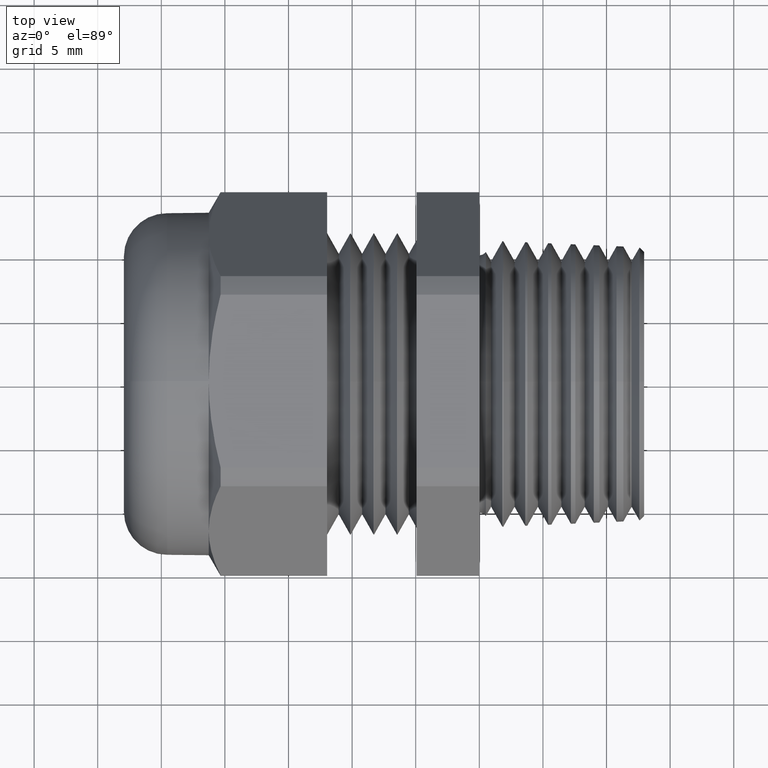
[diagram: clean part render]
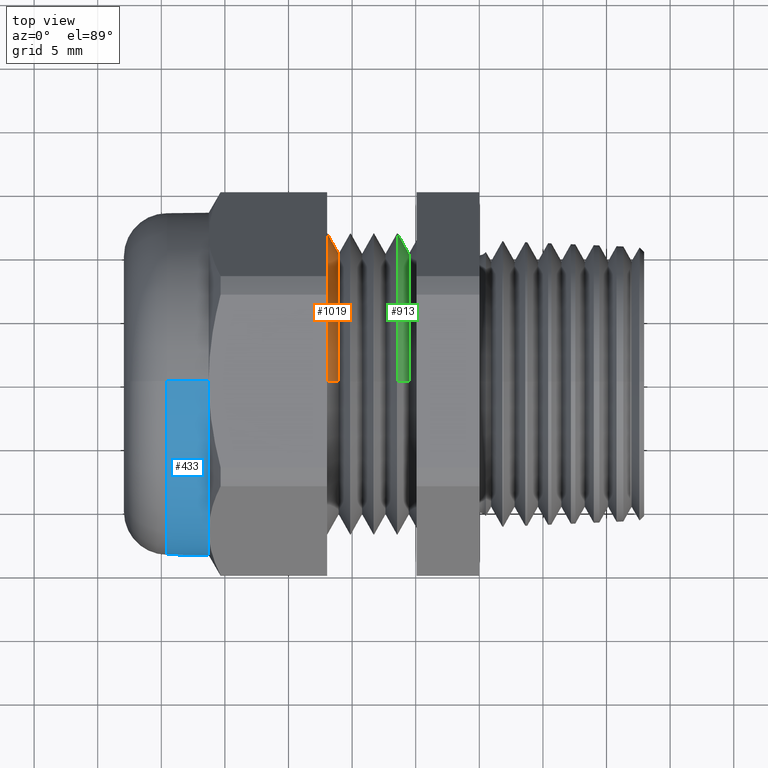
[diagram: same view with three faces highlighted in distinct colors, each labeled with its STEP entity id]
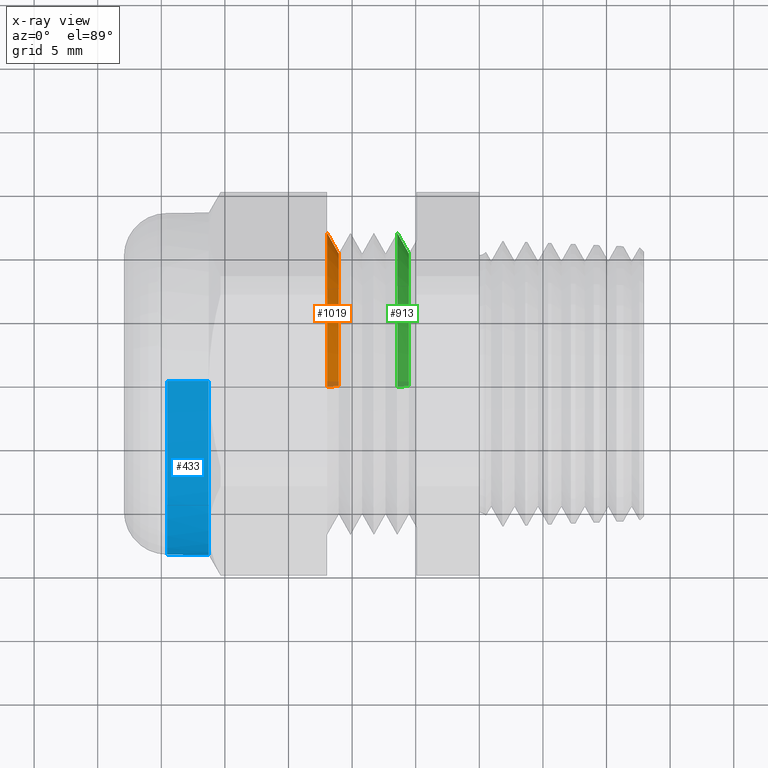
[diagram: x-ray of the same camera — body ghosted, the three highlighted faces saturated]
A machine part, top view with three faces highlighted in distinct colors.
The next image is the same camera in x-ray (body ghosted, the three faces saturated) — at least one of them is partly hidden behind the body in this view.
Their STEP definitions:

[orange] entity #1019 — the highlighted conical surface has half-angle 60 deg.
#961 = EDGE_CURVE ( 'NONE', #1020, #1031, #2719, .T. ) ;
#966 = ORIENTED_EDGE ( 'NONE', *, *, #967, .T. ) ;
#967 = EDGE_CURVE ( 'NONE', #1020, #1012, #2720, .T. ) ;
#968 = ORIENTED_EDGE ( 'NONE', *, *, #1030, .F. ) ;
#975 = ORIENTED_EDGE ( 'NONE', *, *, #976, .T. ) ;
#976 = EDGE_CURVE ( 'NONE', #1012, #979, #2754, .T. ) ;
#979 = VERTEX_POINT ( 'NONE', #2805 ) ;
#1009 = ORIENTED_EDGE ( 'NONE', *, *, #961, .F. ) ;
#1012 = VERTEX_POINT ( 'NONE', #2868 ) ;
#1019 = ADVANCED_FACE ( 'NONE', ( #2852 ), #2851, .T. ) ;
#1020 = VERTEX_POINT ( 'NONE', #2846 ) ;
#1030 = EDGE_CURVE ( 'NONE', #1031, #979, #2922, .T. ) ;
#1031 = VERTEX_POINT ( 'NONE', #2918 ) ;
#1038 = EDGE_LOOP ( 'NONE', ( #1009, #966, #975, #968 ) ) ;
#2717 = CARTESIAN_POINT ( 'NONE',  ( -0.4351190642708378000, 0.0000000000000000000, 0.0000000000000000000 ) ) ;
#2718 = AXIS2_PLACEMENT_3D ( 'NONE', #2717, #2777, #2776 ) ;
#2719 = CIRCLE ( 'NONE', #2718, 0.4045410714285714900 ) ;
#2720 = LINE ( 'NONE', #2775, #2774 ) ;
#2750 = DIRECTION ( 'NONE',  ( 0.0000000000000000000, 0.0000000000000000000, -1.000000000000000000 ) ) ;
#2751 = DIRECTION ( 'NONE',  ( 1.000000000000000000, 0.0000000000000000000, 0.0000000000000000000 ) ) ;
#2752 = CARTESIAN_POINT ( 'NONE',  ( -0.4708333333333333300, 0.0000000000000000000, 0.0000000000000000000 ) ) ;
#2753 = AXIS2_PLACEMENT_3D ( 'NONE', #2752, #2751, #2750 ) ;
#2754 = CIRCLE ( 'NONE', #2753, 0.4664000000000000400 ) ;
#2773 = DIRECTION ( 'NONE',  ( -0.4999999999999941200, 1.060575238724911100E-016, -0.8660254037844420400 ) ) ;
#2774 = VECTOR ( 'NONE', #2773, 39.37007874015748100 ) ;
#2775 = CARTESIAN_POINT ( 'NONE',  ( -0.4708333333333333300, 5.711752671223256000E-017, -0.4664000000000000400 ) ) ;
#2776 = DIRECTION ( 'NONE',  ( 0.0000000000000000000, 0.0000000000000000000, -1.000000000000000000 ) ) ;
#2777 = DIRECTION ( 'NONE',  ( 1.000000000000000000, 0.0000000000000000000, 0.0000000000000000000 ) ) ;
#2805 = CARTESIAN_POINT ( 'NONE',  ( -0.4708333333333333300, 0.0000000000000000000, 0.4664000000000000400 ) ) ;
#2846 = CARTESIAN_POINT ( 'NONE',  ( -0.4351190642708378000, 0.0000000000000000000, -0.4045410714285714900 ) ) ;
#2847 = DIRECTION ( 'NONE',  ( 0.0000000000000000000, 0.0000000000000000000, 1.000000000000000000 ) ) ;
#2848 = DIRECTION ( 'NONE',  ( -1.000000000000000000, 0.0000000000000000000, 0.0000000000000000000 ) ) ;
#2849 = CARTESIAN_POINT ( 'NONE',  ( -0.4708333333333333300, 0.0000000000000000000, 0.0000000000000000000 ) ) ;
#2850 = AXIS2_PLACEMENT_3D ( 'NONE', #2849, #2848, #2847 ) ;
#2851 = CONICAL_SURFACE ( 'NONE', #2850, 0.4664000000000000400, 1.047197551196604500 ) ;
#2852 = FACE_OUTER_BOUND ( 'NONE', #1038, .T. ) ;
#2868 = CARTESIAN_POINT ( 'NONE',  ( -0.4708333333333333300, 5.711752671223256000E-017, -0.4664000000000000400 ) ) ;
#2918 = CARTESIAN_POINT ( 'NONE',  ( -0.4351190642708378000, 5.332975976854832300E-017, 0.4045410714285714900 ) ) ;
#2919 = DIRECTION ( 'NONE',  ( -0.4999999999999941200, 0.0000000000000000000, 0.8660254037844420400 ) ) ;
#2920 = VECTOR ( 'NONE', #2919, 39.37007874015748100 ) ;
#2921 = CARTESIAN_POINT ( 'NONE',  ( -0.4708333333333333300, 0.0000000000000000000, 0.4664000000000000400 ) ) ;
#2922 = LINE ( 'NONE', #2921, #2920 ) ;

[blue] entity #433 — the highlighted cylindrical surface (partial cylindrical patch) has radius 13.462 mm, axis along (-1, 0, 0).
#38 = VERTEX_POINT ( 'NONE', #1158 ) ;
#240 = VERTEX_POINT ( 'NONE', #1598 ) ;
#414 = ORIENTED_EDGE ( 'NONE', *, *, #415, .T. ) ;
#415 = EDGE_CURVE ( 'NONE', #240, #38, #1839, .T. ) ;
#416 = ORIENTED_EDGE ( 'NONE', *, *, #417, .T. ) ;
#417 = EDGE_CURVE ( 'NONE', #38, #1059, #1830, .T. ) ;
#418 = ORIENTED_EDGE ( 'NONE', *, *, #1075, .T. ) ;
#419 = ORIENTED_EDGE ( 'NONE', *, *, #420, .T. ) ;
#420 = EDGE_CURVE ( 'NONE', #1034, #981, #1823, .T. ) ;
#433 = ADVANCED_FACE ( 'NONE', ( #1876 ), #1875, .T. ) ;
#434 = EDGE_LOOP ( 'NONE', ( #435, #436, #414, #416, #418, #419 ) ) ;
#435 = ORIENTED_EDGE ( 'NONE', *, *, #1024, .F. ) ;
#436 = ORIENTED_EDGE ( 'NONE', *, *, #437, .T. ) ;
#437 = EDGE_CURVE ( 'NONE', #1022, #240, #1874, .T. ) ;
#981 = VERTEX_POINT ( 'NONE', #2799 ) ;
#1022 = VERTEX_POINT ( 'NONE', #2844 ) ;
#1024 = EDGE_CURVE ( 'NONE', #1022, #981, #1571, .T. ) ;
#1034 = VERTEX_POINT ( 'NONE', #2910 ) ;
#1059 = VERTEX_POINT ( 'NONE', #3000 ) ;
#1075 = EDGE_CURVE ( 'NONE', #1059, #1034, #2979, .T. ) ;
#1158 = CARTESIAN_POINT ( 'NONE',  ( -0.8375000000000000200, -0.4589934640057523600, 0.2650000000000000100 ) ) ;
#1571 = LINE ( 'NONE', #1825, #2093 ) ;
#1574 = DIRECTION ( 'NONE',  ( 0.0000000000000000000, 0.0000000000000000000, -1.000000000000000000 ) ) ;
#1575 = AXIS2_PLACEMENT_3D ( 'NONE', #1578, #1577, #1574 ) ;
#1577 = DIRECTION ( 'NONE',  ( 1.000000000000000000, 0.0000000000000000000, 0.0000000000000000000 ) ) ;
#1578 = CARTESIAN_POINT ( 'NONE',  ( -0.9663999999999999300, 0.0000000000000000000, 0.0000000000000000000 ) ) ;
#1598 = CARTESIAN_POINT ( 'NONE',  ( -0.8375000000000000200, -0.4589934640057521900, -0.2650000000000003500 ) ) ;
#1823 = CIRCLE ( 'NONE', #1575, 0.5299999999999999200 ) ;
#1825 = CARTESIAN_POINT ( 'NONE',  ( -0.7238591030180623300, 6.490628035480971200E-017, -0.5299999999999999200 ) ) ;
#1826 = DIRECTION ( 'NONE',  ( 0.0000000000000000000, 0.0000000000000000000, 1.000000000000000000 ) ) ;
#1827 = DIRECTION ( 'NONE',  ( -1.000000000000000000, 0.0000000000000000000, 0.0000000000000000000 ) ) ;
#1828 = CARTESIAN_POINT ( 'NONE',  ( -0.8375000000000000200, 0.0000000000000000000, 0.0000000000000000000 ) ) ;
#1829 = AXIS2_PLACEMENT_3D ( 'NONE', #1828, #1827, #1826 ) ;
#1830 = CIRCLE ( 'NONE', #1829, 0.5299999999999999200 ) ;
#1831 = DIRECTION ( 'NONE',  ( 0.0000000000000000000, 0.0000000000000000000, 1.000000000000000000 ) ) ;
#1832 = DIRECTION ( 'NONE',  ( -1.000000000000000000, 0.0000000000000000000, 0.0000000000000000000 ) ) ;
#1833 = CARTESIAN_POINT ( 'NONE',  ( -0.8375000000000000200, 0.0000000000000000000, 0.0000000000000000000 ) ) ;
#1834 = AXIS2_PLACEMENT_3D ( 'NONE', #1833, #1832, #1831 ) ;
#1839 = CIRCLE ( 'NONE', #1834, 0.5299999999999999200 ) ;
#1866 = DIRECTION ( 'NONE',  ( 0.0000000000000000000, 0.0000000000000000000, 1.000000000000000000 ) ) ;
#1867 = DIRECTION ( 'NONE',  ( -1.000000000000000000, 0.0000000000000000000, 0.0000000000000000000 ) ) ;
#1868 = CARTESIAN_POINT ( 'NONE',  ( -0.8375000000000000200, 0.0000000000000000000, 0.0000000000000000000 ) ) ;
#1869 = AXIS2_PLACEMENT_3D ( 'NONE', #1868, #1867, #1866 ) ;
#1870 = DIRECTION ( 'NONE',  ( 0.0000000000000000000, 0.0000000000000000000, 1.000000000000000000 ) ) ;
#1871 = DIRECTION ( 'NONE',  ( -1.000000000000000000, 0.0000000000000000000, 0.0000000000000000000 ) ) ;
#1872 = CARTESIAN_POINT ( 'NONE',  ( -0.7238591030180623300, 0.0000000000000000000, 0.0000000000000000000 ) ) ;
#1873 = AXIS2_PLACEMENT_3D ( 'NONE', #1872, #1871, #1870 ) ;
#1874 = CIRCLE ( 'NONE', #1869, 0.5299999999999999200 ) ;
#1875 = CYLINDRICAL_SURFACE ( 'NONE', #1873, 0.5299999999999999200 ) ;
#1876 = FACE_OUTER_BOUND ( 'NONE', #434, .T. ) ;
#2088 = DIRECTION ( 'NONE',  ( -1.000000000000000000, 0.0000000000000000000, 0.0000000000000000000 ) ) ;
#2093 = VECTOR ( 'NONE', #2088, 39.37007874015748100 ) ;
#2799 = CARTESIAN_POINT ( 'NONE',  ( -0.9663999999999999300, 6.490628035480971200E-017, -0.5299999999999999200 ) ) ;
#2844 = CARTESIAN_POINT ( 'NONE',  ( -0.8375000000000000200, 0.0000000000000000000, -0.5299999999999999200 ) ) ;
#2910 = CARTESIAN_POINT ( 'NONE',  ( -0.9663999999999999300, 0.0000000000000000000, 0.5299999999999999200 ) ) ;
#2971 = DIRECTION ( 'NONE',  ( -1.000000000000000000, 0.0000000000000000000, 0.0000000000000000000 ) ) ;
#2972 = VECTOR ( 'NONE', #2971, 39.37007874015748100 ) ;
#2973 = CARTESIAN_POINT ( 'NONE',  ( -0.7238591030180623300, 0.0000000000000000000, 0.5299999999999999200 ) ) ;
#2979 = LINE ( 'NONE', #2973, #2972 ) ;
#3000 = CARTESIAN_POINT ( 'NONE',  ( -0.8375000000000000200, 0.0000000000000000000, 0.5299999999999999200 ) ) ;

[green] entity #913 — the highlighted conical surface has half-angle 60 deg.
#811 = ORIENTED_EDGE ( 'NONE', *, *, #878, .F. ) ;
#878 = EDGE_CURVE ( 'NONE', #898, #904, #2567, .T. ) ;
#898 = VERTEX_POINT ( 'NONE', #2651 ) ;
#899 = ORIENTED_EDGE ( 'NONE', *, *, #900, .T. ) ;
#900 = EDGE_CURVE ( 'NONE', #917, #901, #2650, .T. ) ;
#901 = VERTEX_POINT ( 'NONE', #2646 ) ;
#902 = ORIENTED_EDGE ( 'NONE', *, *, #903, .T. ) ;
#903 = EDGE_CURVE ( 'NONE', #901, #904, #2645, .T. ) ;
#904 = VERTEX_POINT ( 'NONE', #2640 ) ;
#913 = ADVANCED_FACE ( 'NONE', ( #2628 ), #2627, .T. ) ;
#914 = EDGE_LOOP ( 'NONE', ( #915, #899, #902, #811 ) ) ;
#915 = ORIENTED_EDGE ( 'NONE', *, *, #916, .F. ) ;
#916 = EDGE_CURVE ( 'NONE', #917, #898, #2685, .T. ) ;
#917 = VERTEX_POINT ( 'NONE', #2680 ) ;
#2560 = DIRECTION ( 'NONE',  ( -0.4999999999999941200, 0.0000000000000000000, 0.8660254037844420400 ) ) ;
#2561 = VECTOR ( 'NONE', #2560, 39.37007874015748100 ) ;
#2562 = CARTESIAN_POINT ( 'NONE',  ( -0.2535476190476190800, 0.0000000000000000000, 0.4664000000000000400 ) ) ;
#2567 = LINE ( 'NONE', #2562, #2561 ) ;
#2623 = DIRECTION ( 'NONE',  ( 0.0000000000000000000, 0.0000000000000000000, 1.000000000000000000 ) ) ;
#2624 = DIRECTION ( 'NONE',  ( -1.000000000000000000, 0.0000000000000000000, 0.0000000000000000000 ) ) ;
#2625 = CARTESIAN_POINT ( 'NONE',  ( -0.2535476190476190800, 0.0000000000000000000, 0.0000000000000000000 ) ) ;
#2626 = AXIS2_PLACEMENT_3D ( 'NONE', #2625, #2624, #2623 ) ;
#2627 = CONICAL_SURFACE ( 'NONE', #2626, 0.4664000000000000400, 1.047197551196604500 ) ;
#2628 = FACE_OUTER_BOUND ( 'NONE', #914, .T. ) ;
#2640 = CARTESIAN_POINT ( 'NONE',  ( -0.2535476190476190800, 0.0000000000000000000, 0.4664000000000000400 ) ) ;
#2641 = DIRECTION ( 'NONE',  ( 0.0000000000000000000, 0.0000000000000000000, -1.000000000000000000 ) ) ;
#2642 = DIRECTION ( 'NONE',  ( 1.000000000000000000, 0.0000000000000000000, 0.0000000000000000000 ) ) ;
#2643 = CARTESIAN_POINT ( 'NONE',  ( -0.2535476190476190800, 0.0000000000000000000, 0.0000000000000000000 ) ) ;
#2644 = AXIS2_PLACEMENT_3D ( 'NONE', #2643, #2642, #2641 ) ;
#2645 = CIRCLE ( 'NONE', #2644, 0.4664000000000000400 ) ;
#2646 = CARTESIAN_POINT ( 'NONE',  ( -0.2535476190476190800, 5.711752671223256000E-017, -0.4664000000000000400 ) ) ;
#2647 = DIRECTION ( 'NONE',  ( -0.4999999999999941200, 1.060575238724911100E-016, -0.8660254037844420400 ) ) ;
#2648 = VECTOR ( 'NONE', #2647, 39.37007874015748100 ) ;
#2649 = CARTESIAN_POINT ( 'NONE',  ( -0.2535476190476190800, 5.711752671223256000E-017, -0.4664000000000000400 ) ) ;
#2650 = LINE ( 'NONE', #2649, #2648 ) ;
#2651 = CARTESIAN_POINT ( 'NONE',  ( -0.2178333499851235200, 5.332975976854832300E-017, 0.4045410714285714900 ) ) ;
#2680 = CARTESIAN_POINT ( 'NONE',  ( -0.2178333499851235200, 0.0000000000000000000, -0.4045410714285714900 ) ) ;
#2681 = DIRECTION ( 'NONE',  ( 0.0000000000000000000, 0.0000000000000000000, -1.000000000000000000 ) ) ;
#2682 = DIRECTION ( 'NONE',  ( 1.000000000000000000, 0.0000000000000000000, 0.0000000000000000000 ) ) ;
#2683 = CARTESIAN_POINT ( 'NONE',  ( -0.2178333499851235200, 0.0000000000000000000, 0.0000000000000000000 ) ) ;
#2684 = AXIS2_PLACEMENT_3D ( 'NONE', #2683, #2682, #2681 ) ;
#2685 = CIRCLE ( 'NONE', #2684, 0.4045410714285714900 ) ;